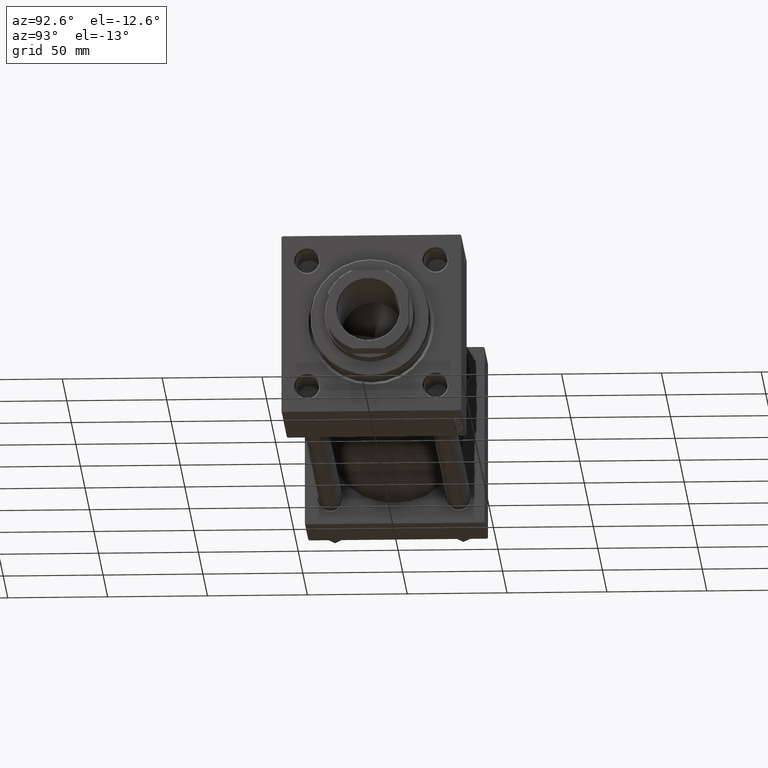
[diagram: clean part render]
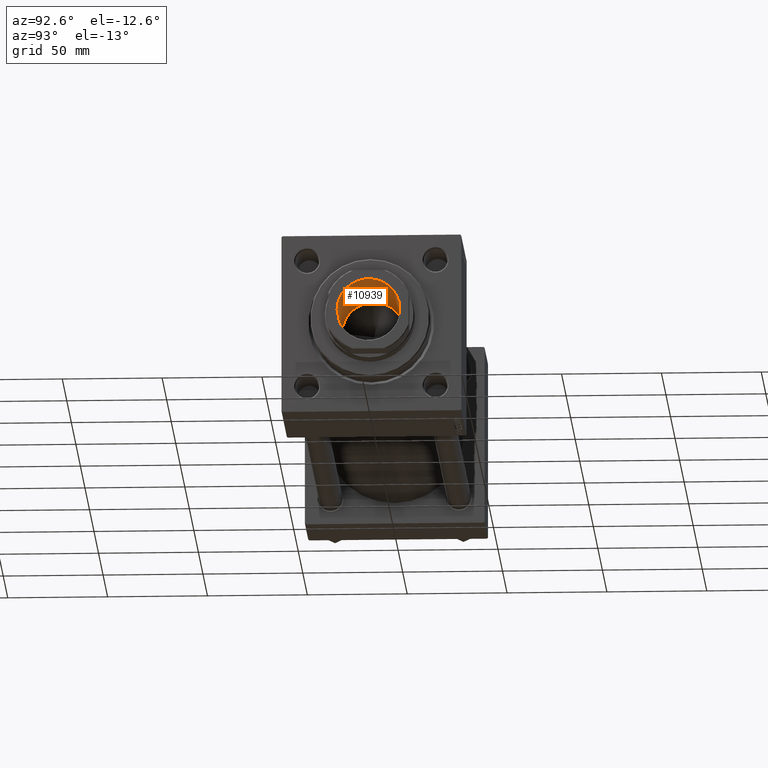
[diagram: same view with one face highlighted and labeled with its STEP entity id]
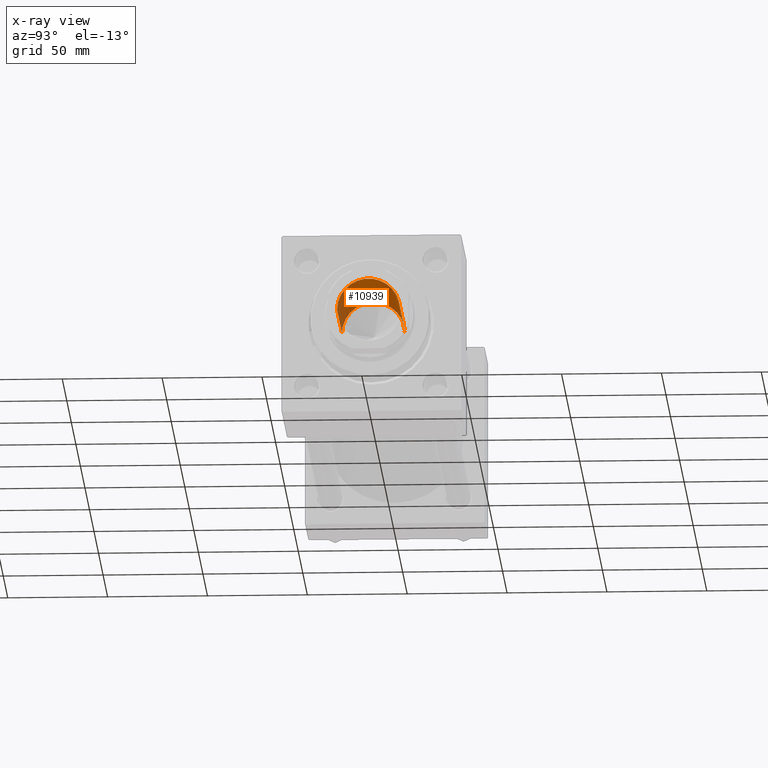
[diagram: x-ray of the same camera — body ghosted, the highlighted face saturated]
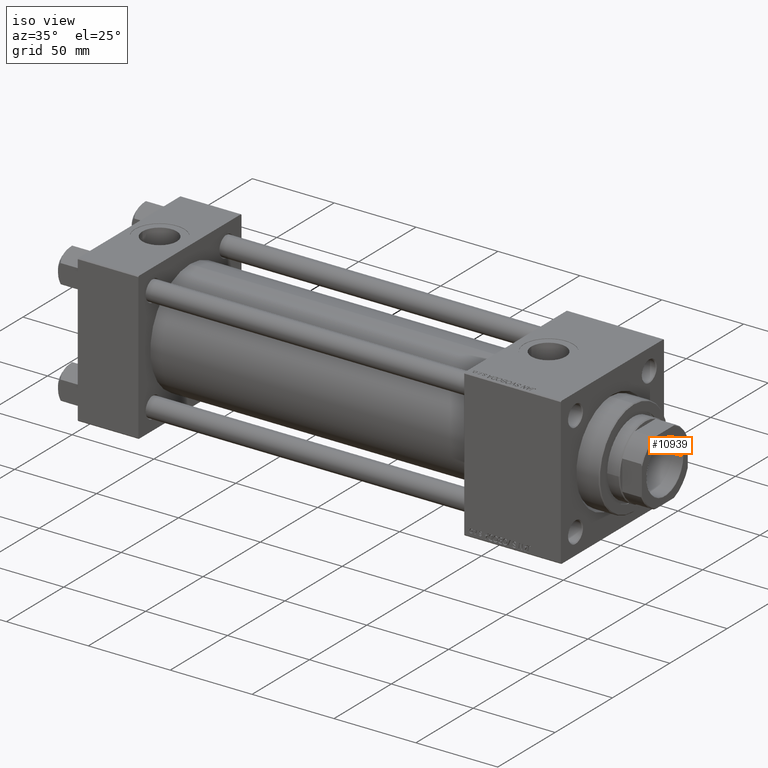
[diagram: same view with one face highlighted and labeled with its STEP entity id]
A machine part, auxiliary view. The second image highlights one B-rep face of the part: STEP entity #10939.
The next image is the same camera in x-ray: the body ghosted, the highlighted face saturated — about 1% of this face is hidden behind the body in this view.
A second angle (iso view) of the same face is appended — the face is thin or edge-on in the first view.
In plain terms, the highlighted cylindrical surface (edge-blend (fillet) strip) has radius 15.75 mm, axis along (1, 0, 0).
Its self-contained STEP definition (entity closure, byte-faithful):
#6151 = CARTESIAN_POINT ( 'NONE',  ( 0.000000000000000000, 0.000000000000000000, 235.0000000000000000 ) ) ;
#6492 = AXIS2_PLACEMENT_3D ( 'NONE', #32984, #48468, #33242 ) ;
#8228 = CARTESIAN_POINT ( 'NONE',  ( 15.74999999999998934, 0.000000000000000000, 235.0000000000000000 ) ) ;
#9410 = CARTESIAN_POINT ( 'NONE',  ( 15.74999999999999289, 0.000000000000000000, 290.0000000000000000 ) ) ;
#9702 = FACE_OUTER_BOUND ( 'NONE', #45023, .T. ) ;
#9911 = DIRECTION ( 'NONE',  ( -0.000000000000000000, -0.000000000000000000, 1.000000000000000000 ) ) ;
#10939 = ADVANCED_FACE ( 'NONE', ( #9702 ), #17557, .F. ) ;
#11302 = VERTEX_POINT ( 'NONE', #44599 ) ;
#12154 = VERTEX_POINT ( 'NONE', #46430 ) ;
#13340 = EDGE_CURVE ( 'NONE', #12154, #35530, #42995, .T. ) ;
#13720 = ORIENTED_EDGE ( 'NONE', *, *, #43994, .T. ) ;
#14808 = ORIENTED_EDGE ( 'NONE', *, *, #17910, .F. ) ;
#15052 = CARTESIAN_POINT ( 'NONE',  ( -15.74999999999999289, 1.928818708657080556E-15, 289.6999999999998749 ) ) ;
#15215 = LINE ( 'NONE', #38011, #45234 ) ;
#15977 = ORIENTED_EDGE ( 'NONE', *, *, #29606, .T. ) ;
#16684 = AXIS2_PLACEMENT_3D ( 'NONE', #23213, #45554, #38668 ) ;
#17557 = CYLINDRICAL_SURFACE ( 'NONE', #6492, 15.74999999999999289 ) ;
#17910 = EDGE_CURVE ( 'NONE', #35530, #11302, #29162, .T. ) ;
#21133 = AXIS2_PLACEMENT_3D ( 'NONE', #6151, #21603, #25660 ) ;
#21603 = DIRECTION ( 'NONE',  ( -0.000000000000000000, -0.000000000000000000, 1.000000000000000000 ) ) ;
#22315 = DIRECTION ( 'NONE',  ( -0.000000000000000000, -0.000000000000000000, 1.000000000000000000 ) ) ;
#23213 = CARTESIAN_POINT ( 'NONE',  ( 0.000000000000000000, 0.000000000000000000, 289.6999999999998749 ) ) ;
#25660 = DIRECTION ( 'NONE',  ( 1.000000000000000000, 0.000000000000000000, 0.000000000000000000 ) ) ;
#26131 = VECTOR ( 'NONE', #9911, 1000.000000000000000 ) ;
#29162 = LINE ( 'NONE', #9410, #26131 ) ;
#29606 = EDGE_CURVE ( 'NONE', #37901, #11302, #35260, .T. ) ;
#32984 = CARTESIAN_POINT ( 'NONE',  ( 0.000000000000000000, 0.000000000000000000, 290.0000000000000000 ) ) ;
#33242 = DIRECTION ( 'NONE',  ( 1.000000000000000000, 0.000000000000000000, 0.000000000000000000 ) ) ;
#35260 = CIRCLE ( 'NONE', #16684, 15.74999999999999289 ) ;
#35530 = VERTEX_POINT ( 'NONE', #8228 ) ;
#37901 = VERTEX_POINT ( 'NONE', #15052 ) ;
#38011 = CARTESIAN_POINT ( 'NONE',  ( -15.74999999999999289, 1.928818708657080556E-15, 290.0000000000000000 ) ) ;
#38668 = DIRECTION ( 'NONE',  ( 1.000000000000000000, 0.000000000000000000, 0.000000000000000000 ) ) ;
#42995 = CIRCLE ( 'NONE', #21133, 15.74999999999998934 ) ;
#43994 = EDGE_CURVE ( 'NONE', #12154, #37901, #15215, .T. ) ;
#44599 = CARTESIAN_POINT ( 'NONE',  ( 15.74999999999999289, 0.000000000000000000, 289.6999999999998749 ) ) ;
#45023 = EDGE_LOOP ( 'NONE', ( #45711, #13720, #15977, #14808 ) ) ;
#45234 = VECTOR ( 'NONE', #22315, 1000.000000000000000 ) ;
#45554 = DIRECTION ( 'NONE',  ( 0.000000000000000000, 0.000000000000000000, 1.000000000000000000 ) ) ;
#45711 = ORIENTED_EDGE ( 'NONE', *, *, #13340, .F. ) ;
#46430 = CARTESIAN_POINT ( 'NONE',  ( -15.74999999999998934, 1.928818708657080161E-15, 235.0000000000000000 ) ) ;
#48468 = DIRECTION ( 'NONE',  ( -0.000000000000000000, -0.000000000000000000, 1.000000000000000000 ) ) ;